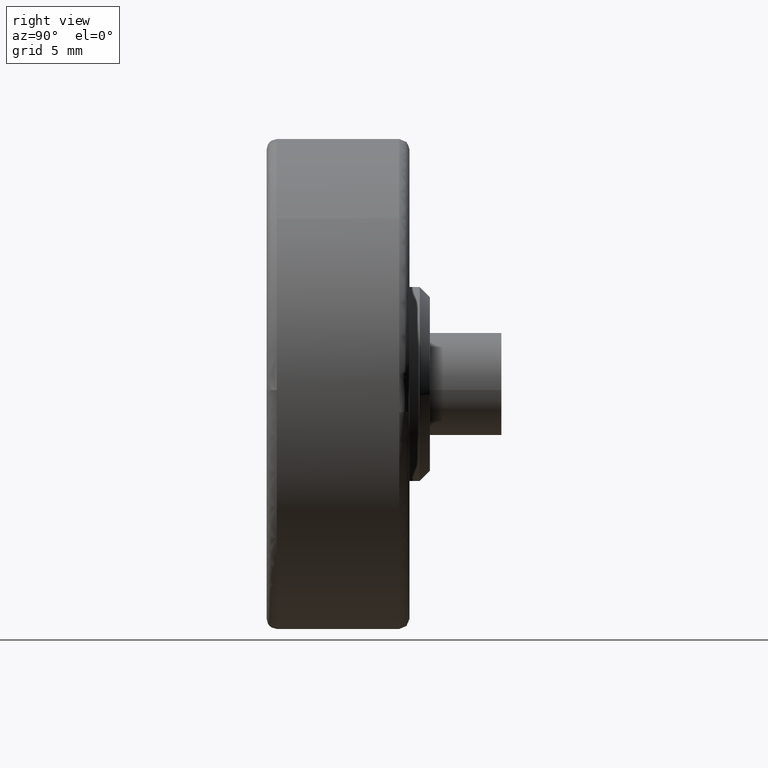
[diagram: clean part render]
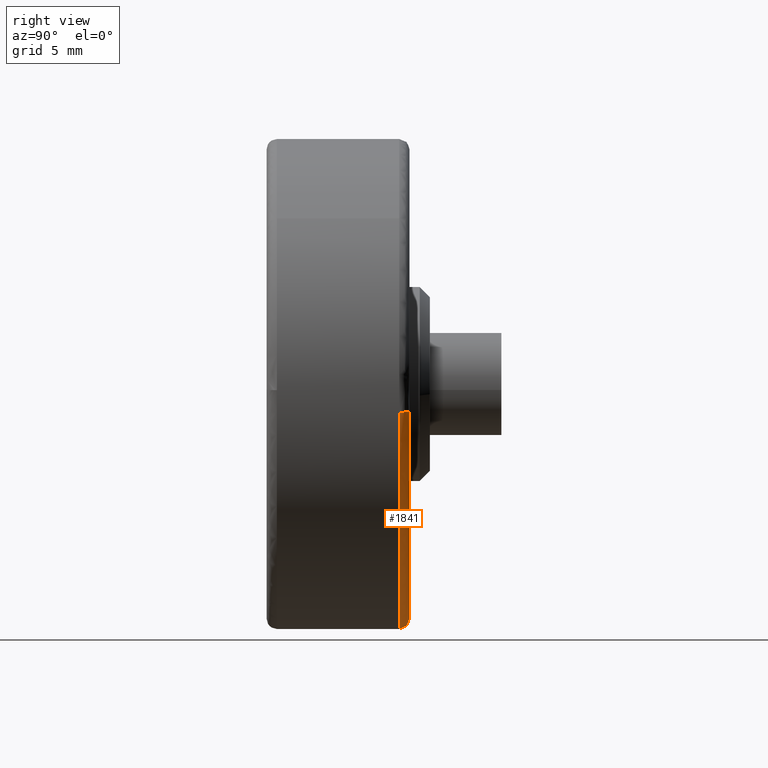
[diagram: same view with one face highlighted and labeled with its STEP entity id]
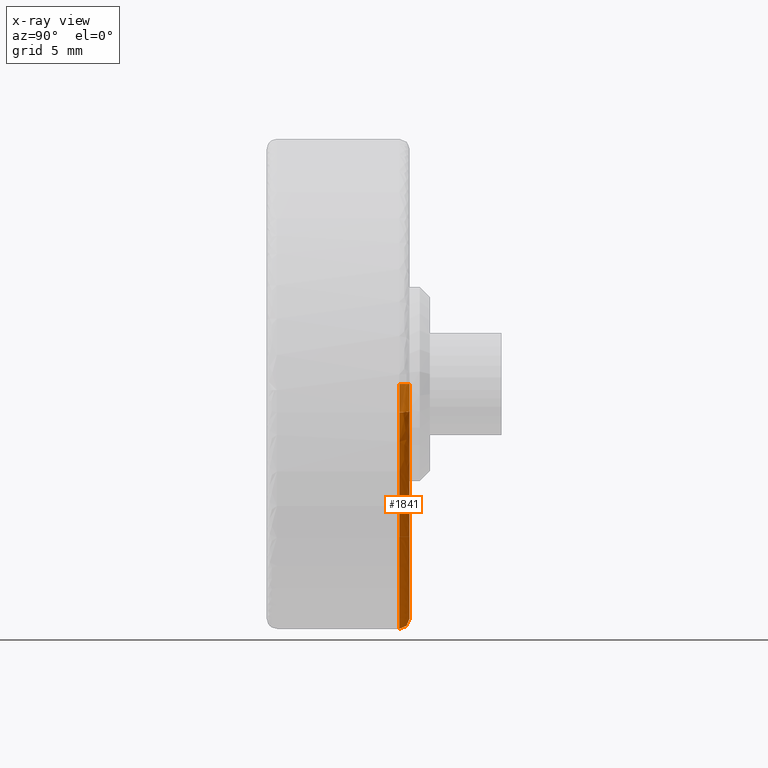
[diagram: x-ray of the same camera — body ghosted, the highlighted face saturated]
A machine part, right view. The second image highlights one B-rep face of the part: STEP entity #1841.
The next image is the same camera in x-ray: the body ghosted, the highlighted face saturated — about 12% of this face is hidden behind the body in this view.
In plain terms, the highlighted face is a freeform B-spline surface patch.
Its self-contained STEP definition (entity closure, byte-faithful):
#1344=CARTESIAN_POINT('',(-12.0,6.500000000050907,0.0));
#1345=VERTEX_POINT('',#1344);
#1359=CARTESIAN_POINT('',(0.0,6.500000000000000,-12.0));
#1360=VERTEX_POINT('',#1359);
#1361=CARTESIAN_POINT('',(-12.0,6.500000000050907,0.0));
#1362=CARTESIAN_POINT('',(-12.0,6.500000000000001,-12.0));
#1363=CARTESIAN_POINT('',(0.0,6.500000000000000,-12.0));
#1371=(BOUNDED_CURVE()B_SPLINE_CURVE(2,(#1361,#1362,#1363),.UNSPECIFIED.,.F.,.U.)B_SPLINE_CURVE_WITH_KNOTS((3,3),(0.750000000000000,1.0),.UNSPECIFIED.)CURVE()GEOMETRIC_REPRESENTATION_ITEM()RATIONAL_B_SPLINE_CURVE((1.0,0.707106781186548,1.0))REPRESENTATION_ITEM(''));
#1372=EDGE_CURVE('',#1345,#1360,#1371,.T.);
#1374=CARTESIAN_POINT('',(11.919739665420460,6.500000000054701,-1.385570751929333));
#1375=VERTEX_POINT('',#1374);
#1376=CARTESIAN_POINT('',(0.0,6.500000000000000,-12.0));
#1377=CARTESIAN_POINT('',(10.685900409915295,6.499999999999999,-12.0));
#1378=CARTESIAN_POINT('',(11.919739665420463,6.500000000054701,-1.385570751929333));
#1386=(BOUNDED_CURVE()B_SPLINE_CURVE(2,(#1376,#1377,#1378),.UNSPECIFIED.,.F.,.U.)B_SPLINE_CURVE_WITH_KNOTS((3,3),(0.0,0.229999999999874),.UNSPECIFIED.)CURVE()GEOMETRIC_REPRESENTATION_ITEM()RATIONAL_B_SPLINE_CURVE((1.0,0.730538238691772,0.956886118190411))REPRESENTATION_ITEM(''));
#1387=EDGE_CURVE('',#1360,#1375,#1386,.T.);
#1719=CARTESIAN_POINT('',(11.423083846275119,7.0,-1.327838637292638));
#1720=VERTEX_POINT('',#1719);
#1721=CARTESIAN_POINT('',(11.423083846275116,7.0,-1.327838637292637));
#1722=CARTESIAN_POINT('',(11.919739665312308,6.999999999502720,-1.385570751912256));
#1723=CARTESIAN_POINT('',(11.919739665420465,6.500000000054700,-1.385570751929333));
#1731=(BOUNDED_CURVE()B_SPLINE_CURVE(2,(#1721,#1722,#1723),.UNSPECIFIED.,.F.,.U.)B_SPLINE_CURVE_WITH_KNOTS((3,3),(-1.736413120042838,-0.276558718240506),.UNSPECIFIED.)CURVE()GEOMETRIC_REPRESENTATION_ITEM()RATIONAL_B_SPLINE_CURVE((0.850203275946493,0.599621899426504,0.845789311821511))REPRESENTATION_ITEM(''));
#1732=EDGE_CURVE('',#1720,#1375,#1731,.T.);
#1751=CARTESIAN_POINT('',(-11.500000000088900,7.0,0.0));
#1752=VERTEX_POINT('',#1751);
#1766=CARTESIAN_POINT('',(-11.500000000088896,7.0,0.0));
#1767=CARTESIAN_POINT('',(-11.999999999898181,6.999999999822197,0.0));
#1768=CARTESIAN_POINT('',(-11.999999999999996,6.500000000050907,0.0));
#1776=(BOUNDED_CURVE()B_SPLINE_CURVE(2,(#1766,#1767,#1768),.UNSPECIFIED.,.F.,.U.)B_SPLINE_CURVE_WITH_KNOTS((3,3),(-1.736413120704134,-0.276558718224886),.UNSPECIFIED.)CURVE()GEOMETRIC_REPRESENTATION_ITEM()RATIONAL_B_SPLINE_CURVE((0.888510408930512,0.626638727340004,0.883897567064773))REPRESENTATION_ITEM(''));
#1777=EDGE_CURVE('',#1752,#1345,#1776,.T.);
#1784=CARTESIAN_POINT('',(-11.465324712267673,6.998796175226595,7.020255E-016));
#1785=CARTESIAN_POINT('',(-11.465324712267668,6.998796175226596,-11.465324712267666));
#1786=CARTESIAN_POINT('',(-1.404051E-015,6.998796175226595,-11.465324712267673));
#1787=CARTESIAN_POINT('',(10.209776503560418,6.998796175226594,-11.465324712267666));
#1788=CARTESIAN_POINT('',(11.388640479145694,6.998796175226594,-1.323834881886644));
#1789=CARTESIAN_POINT('',(-12.038869635959982,7.038667842741712,7.371438E-016));
#1790=CARTESIAN_POINT('',(-12.038869635959982,7.038667842741712,-12.038869635959976));
#1791=CARTESIAN_POINT('',(-1.474288E-015,7.038667842741712,-12.038869635959982));
#1792=CARTESIAN_POINT('',(10.720513498159848,7.038667842741712,-12.038869635959985));
#1793=CARTESIAN_POINT('',(11.958349327215370,7.038667842741712,-1.390058804485232));
#1794=CARTESIAN_POINT('',(-11.998783152779630,6.465137893018171,7.346893E-016));
#1795=CARTESIAN_POINT('',(-11.998783152779625,6.465137893018171,-11.998783152779621));
#1796=CARTESIAN_POINT('',(-1.469379E-015,6.465137893018171,-11.998783152779630));
#1797=CARTESIAN_POINT('',(10.684816817572401,6.465137893018168,-11.998783152779623));
#1798=CARTESIAN_POINT('',(11.918530956914358,6.465137893018172,-1.385430249598380));
#1806=(BOUNDED_SURFACE()B_SPLINE_SURFACE(2,2,((#1784,#1789,#1794),(#1785,#1790,#1795),(#1786,#1791,#1796),(#1787,#1792,#1797),(#1788,#1793,#1798)),.UNSPECIFIED.,.F.,.F.,.U.)B_SPLINE_SURFACE_WITH_KNOTS((3,2,3),(3,3),(0.0,19.880234855420500,38.170050922407363),(0.0,0.911185181254623),.UNSPECIFIED.)GEOMETRIC_REPRESENTATION_ITEM()RATIONAL_B_SPLINE_SURFACE(((0.915966621911565,0.599412927647948,0.910892953526734),(0.647686209694202,0.423848945870745,0.644098584373797),(0.915966621911565,0.599412927647948,0.910892953526734),(0.669148642671591,0.437894064412921,0.665442133906032),(0.876475745233169,0.573569909530343,0.871620822387422)))REPRESENTATION_ITEM('')SURFACE());
#1807=ORIENTED_EDGE('',*,*,#1387,.F.);
#1808=ORIENTED_EDGE('',*,*,#1372,.F.);
#1809=ORIENTED_EDGE('',*,*,#1777,.F.);
#1810=CARTESIAN_POINT('',(0.0,7.0,-11.500000000000000));
#1811=VERTEX_POINT('',#1810);
#1812=CARTESIAN_POINT('',(-11.500000000088900,7.0,0.0));
#1813=CARTESIAN_POINT('',(-11.500000000000000,6.999999999999999,-11.500000000000000));
#1814=CARTESIAN_POINT('',(0.0,7.0,-11.500000000000000));
#1822=(BOUNDED_CURVE()B_SPLINE_CURVE(2,(#1812,#1813,#1814),.UNSPECIFIED.,.F.,.U.)B_SPLINE_CURVE_WITH_KNOTS((3,3),(0.750000000000000,1.0),.UNSPECIFIED.)CURVE()GEOMETRIC_REPRESENTATION_ITEM()RATIONAL_B_SPLINE_CURVE((1.0,0.707106781186548,1.0))REPRESENTATION_ITEM(''));
#1823=EDGE_CURVE('',#1752,#1811,#1822,.T.);
#1824=ORIENTED_EDGE('',*,*,#1823,.T.);
#1825=CARTESIAN_POINT('',(0.0,7.0,-11.500000000000000));
#1826=CARTESIAN_POINT('',(10.240654559505197,6.999999999999999,-11.499999999999998));
#1827=CARTESIAN_POINT('',(11.423083846275116,7.0,-1.327838637292638));
#1835=(BOUNDED_CURVE()B_SPLINE_CURVE(2,(#1825,#1826,#1827),.UNSPECIFIED.,.F.,.U.)B_SPLINE_CURVE_WITH_KNOTS((3,3),(0.0,0.229999999999924),.UNSPECIFIED.)CURVE()GEOMETRIC_REPRESENTATION_ITEM()RATIONAL_B_SPLINE_CURVE((1.0,0.730538238691713,0.956886118190510))REPRESENTATION_ITEM(''));
#1836=EDGE_CURVE('',#1811,#1720,#1835,.T.);
#1837=ORIENTED_EDGE('',*,*,#1836,.T.);
#1838=ORIENTED_EDGE('',*,*,#1732,.T.);
#1839=EDGE_LOOP('',(#1807,#1808,#1809,#1824,#1837,#1838));
#1840=FACE_OUTER_BOUND('',#1839,.T.);
#1841=ADVANCED_FACE('',(#1840),#1806,.T.);